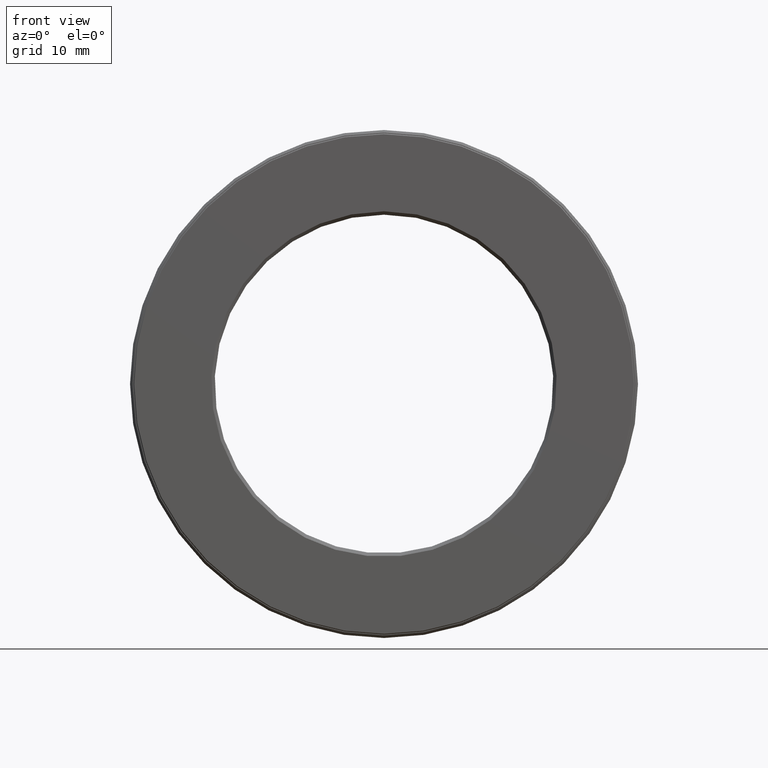
[diagram: clean part render]
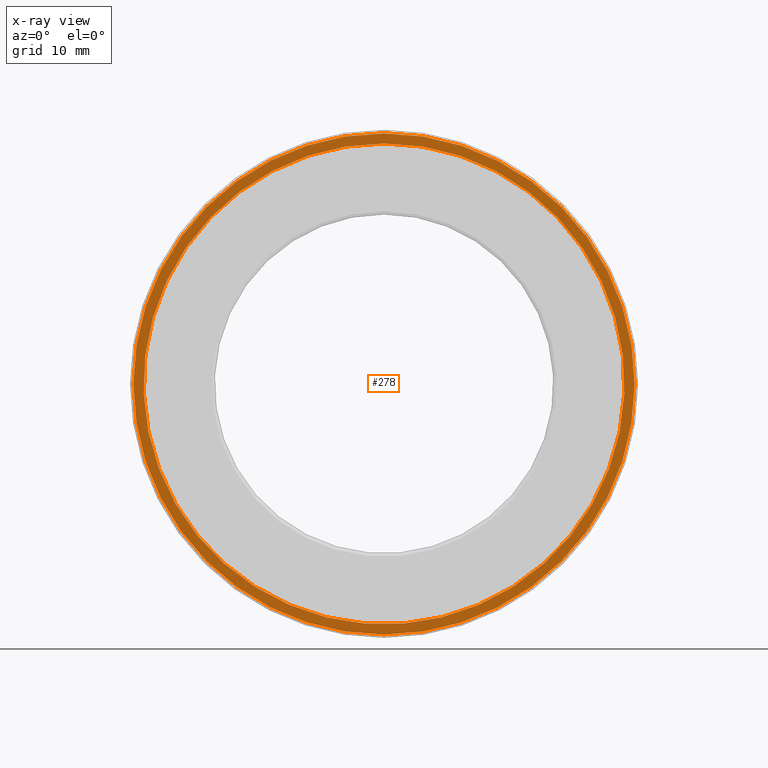
[diagram: x-ray — body ghosted, one internal face saturated and labeled with its STEP entity id]
A machine part, front view, then the same camera in x-ray: the body is ghosted and one INTERNAL B-rep face — a face not visible from any outside direction — is saturated and labeled: STEP entity #278.
In plain terms, the highlighted planar face has unit normal (-0, 1, 0).
Its self-contained STEP definition (entity closure, byte-faithful):
#22 = DIRECTION ( 'NONE',  ( 0.0000000000000000000, 0.0000000000000000000, 1.000000000000000000 ) ) ;
#43 = CARTESIAN_POINT ( 'NONE',  ( 0.0000000000000000000, 0.7774999999999998600, 1.420000000000000200 ) ) ;
#46 = EDGE_CURVE ( 'NONE', #518, #518, #501, .T. ) ;
#113 = CIRCLE ( 'NONE', #438, 1.480000000000000000 ) ;
#129 = DIRECTION ( 'NONE',  ( 0.0000000000000000000, 0.0000000000000000000, 1.000000000000000000 ) ) ;
#139 = DIRECTION ( 'NONE',  ( 0.0000000000000000000, 0.0000000000000000000, 1.000000000000000000 ) ) ;
#169 = EDGE_CURVE ( 'NONE', #395, #395, #113, .T. ) ;
#196 = FACE_OUTER_BOUND ( 'NONE', #581, .T. ) ;
#236 = CARTESIAN_POINT ( 'NONE',  ( 0.0000000000000000000, 0.7774999999999998600, 0.0000000000000000000 ) ) ;
#246 = FACE_BOUND ( 'NONE', #575, .T. ) ;
#261 = AXIS2_PLACEMENT_3D ( 'NONE', #236, #286, #22 ) ;
#278 = ADVANCED_FACE ( 'NONE', ( #196, #246 ), #536, .F. ) ;
#286 = DIRECTION ( 'NONE',  ( -0.0000000000000000000, 1.000000000000000000, 0.0000000000000000000 ) ) ;
#313 = DIRECTION ( 'NONE',  ( -0.0000000000000000000, 1.000000000000000000, -0.0000000000000000000 ) ) ;
#319 = ORIENTED_EDGE ( 'NONE', *, *, #46, .T. ) ;
#338 = ORIENTED_EDGE ( 'NONE', *, *, #169, .F. ) ;
#370 = DIRECTION ( 'NONE',  ( -0.0000000000000000000, 1.000000000000000000, -0.0000000000000000000 ) ) ;
#372 = CARTESIAN_POINT ( 'NONE',  ( 0.0000000000000000000, 0.7774999999999998600, 1.480000000000000000 ) ) ;
#377 = CARTESIAN_POINT ( 'NONE',  ( 0.0000000000000000000, 0.7774999999999998600, 0.0000000000000000000 ) ) ;
#395 = VERTEX_POINT ( 'NONE', #372 ) ;
#399 = AXIS2_PLACEMENT_3D ( 'NONE', #416, #313, #129 ) ;
#416 = CARTESIAN_POINT ( 'NONE',  ( 0.0000000000000000000, 0.7774999999999998600, 0.0000000000000000000 ) ) ;
#438 = AXIS2_PLACEMENT_3D ( 'NONE', #377, #370, #139 ) ;
#501 = CIRCLE ( 'NONE', #399, 1.420000000000000200 ) ;
#518 = VERTEX_POINT ( 'NONE', #43 ) ;
#536 = PLANE ( 'NONE',  #261 ) ;
#575 = EDGE_LOOP ( 'NONE', ( #319 ) ) ;
#581 = EDGE_LOOP ( 'NONE', ( #338 ) ) ;